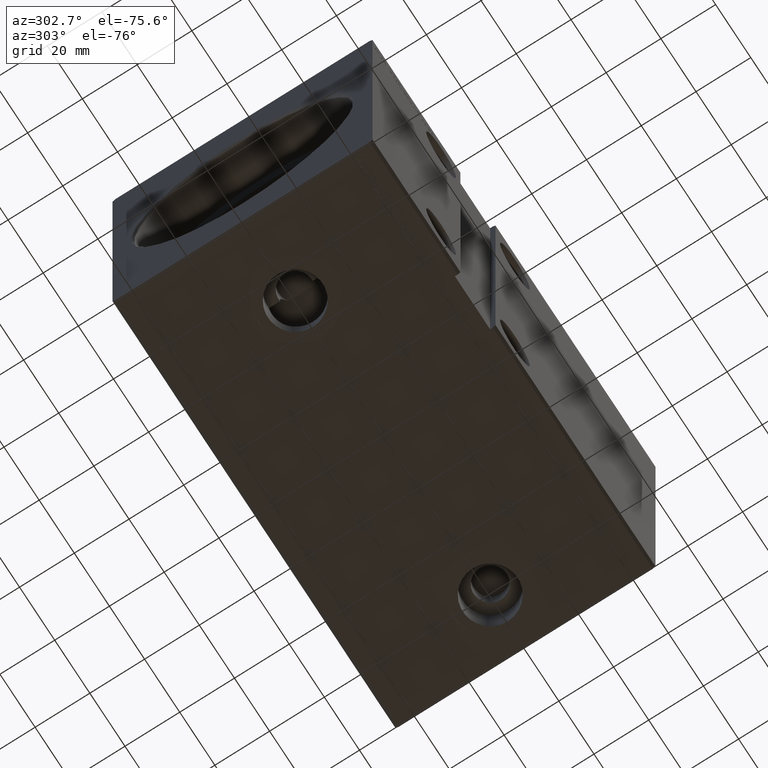
[diagram: clean part render]
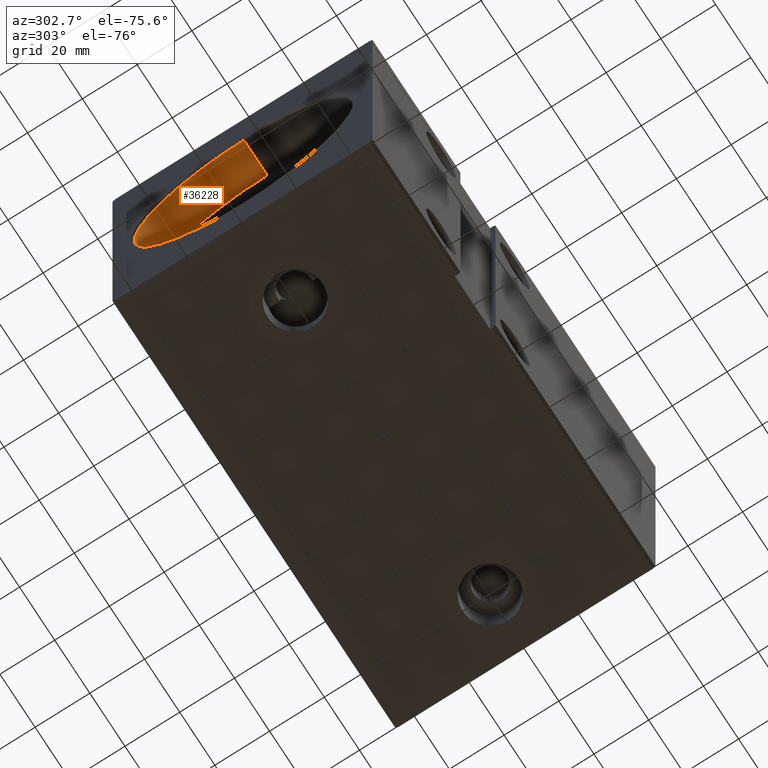
[diagram: same view with one face highlighted and labeled with its STEP entity id]
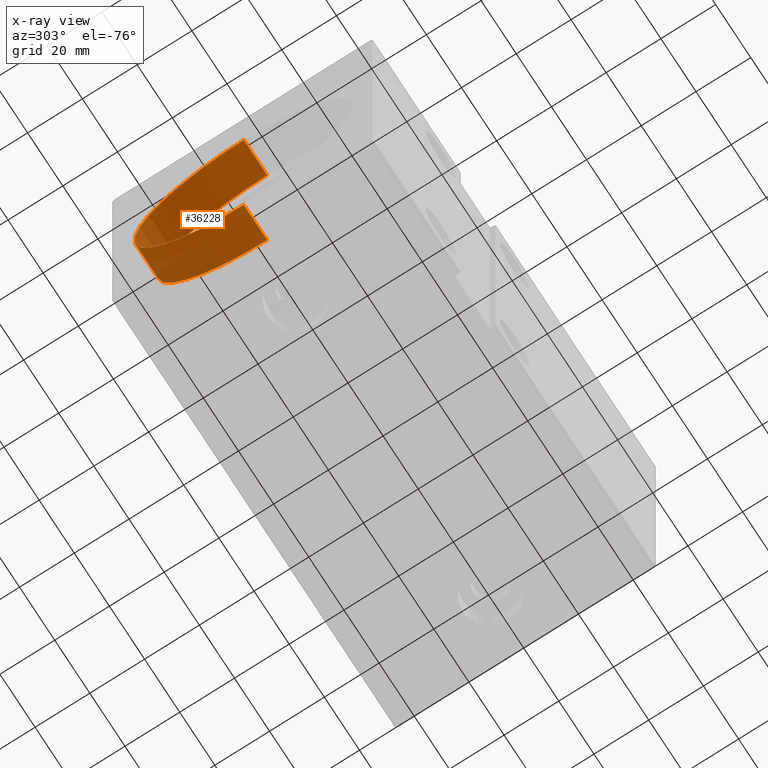
[diagram: x-ray of the same camera — body ghosted, the highlighted face saturated]
A machine part, auxiliary view. The second image highlights one B-rep face of the part: STEP entity #36228.
The next image is the same camera in x-ray: the body ghosted, the highlighted face saturated — about 18% of this face is hidden behind the body in this view.
In plain terms, the highlighted cylindrical surface (partial cylindrical patch) has radius 40 mm, axis along (-1, -0, -0).
Its self-contained STEP definition (entity closure, byte-faithful):
#736 = CARTESIAN_POINT ( 'NONE',  ( 14.00000000000000000, 0.000000000000000000, 40.00000000000000000 ) ) ;
#883 = EDGE_CURVE ( 'NONE', #34728, #3375, #41854, .T. ) ;
#2786 = CARTESIAN_POINT ( 'NONE',  ( 14.00000000000000000, 0.000000000000000000, 0.000000000000000000 ) ) ;
#3375 = VERTEX_POINT ( 'NONE', #12001 ) ;
#3794 = ORIENTED_EDGE ( 'NONE', *, *, #36756, .F. ) ;
#4360 = LINE ( 'NONE', #736, #38173 ) ;
#5820 = VERTEX_POINT ( 'NONE', #23502 ) ;
#8802 = CARTESIAN_POINT ( 'NONE',  ( 14.00000000000000000, 0.000000000000000000, 0.000000000000000000 ) ) ;
#12001 = CARTESIAN_POINT ( 'NONE',  ( 0.7000000000000408118, 4.898587196589413026E-15, -40.00000000000000000 ) ) ;
#13876 = DIRECTION ( 'NONE',  ( 0.000000000000000000, 0.000000000000000000, -1.000000000000000000 ) ) ;
#15797 = DIRECTION ( 'NONE',  ( 0.000000000000000000, 0.000000000000000000, 1.000000000000000000 ) ) ;
#17825 = CARTESIAN_POINT ( 'NONE',  ( 0.7000000000000408118, 0.000000000000000000, 40.00000000000000000 ) ) ;
#17869 = EDGE_CURVE ( 'NONE', #5820, #3375, #34517, .T. ) ;
#18996 = FACE_OUTER_BOUND ( 'NONE', #27762, .T. ) ;
#19902 = CIRCLE ( 'NONE', #20603, 40.00000000000000000 ) ;
#20160 = DIRECTION ( 'NONE',  ( -1.000000000000000000, -0.000000000000000000, -0.000000000000000000 ) ) ;
#20603 = AXIS2_PLACEMENT_3D ( 'NONE', #8802, #38481, #22065 ) ;
#21307 = DIRECTION ( 'NONE',  ( -1.000000000000000000, -0.000000000000000000, -0.000000000000000000 ) ) ;
#22065 = DIRECTION ( 'NONE',  ( 0.000000000000000000, 0.000000000000000000, 1.000000000000000000 ) ) ;
#22416 = CYLINDRICAL_SURFACE ( 'NONE', #38964, 40.00000000000000000 ) ;
#22588 = ORIENTED_EDGE ( 'NONE', *, *, #883, .T. ) ;
#23502 = CARTESIAN_POINT ( 'NONE',  ( 14.00000000000000000, 4.898587196589413026E-15, -40.00000000000000000 ) ) ;
#24144 = AXIS2_PLACEMENT_3D ( 'NONE', #26274, #36294, #13876 ) ;
#26274 = CARTESIAN_POINT ( 'NONE',  ( 0.7000000000000408118, 0.000000000000000000, 0.000000000000000000 ) ) ;
#27762 = EDGE_LOOP ( 'NONE', ( #40141, #3794, #33278, #22588 ) ) ;
#28196 = DIRECTION ( 'NONE',  ( -1.000000000000000000, -0.000000000000000000, -0.000000000000000000 ) ) ;
#30993 = EDGE_CURVE ( 'NONE', #39756, #34728, #4360, .T. ) ;
#33278 = ORIENTED_EDGE ( 'NONE', *, *, #30993, .T. ) ;
#34517 = LINE ( 'NONE', #37298, #38195 ) ;
#34728 = VERTEX_POINT ( 'NONE', #17825 ) ;
#36228 = ADVANCED_FACE ( 'NONE', ( #18996 ), #22416, .F. ) ;
#36294 = DIRECTION ( 'NONE',  ( -1.000000000000000000, 0.000000000000000000, 0.000000000000000000 ) ) ;
#36756 = EDGE_CURVE ( 'NONE', #39756, #5820, #19902, .T. ) ;
#36860 = CARTESIAN_POINT ( 'NONE',  ( 14.00000000000000000, 0.000000000000000000, 40.00000000000000000 ) ) ;
#37298 = CARTESIAN_POINT ( 'NONE',  ( 14.00000000000000000, 4.898587196589413026E-15, -40.00000000000000000 ) ) ;
#38173 = VECTOR ( 'NONE', #20160, 1000.000000000000000 ) ;
#38195 = VECTOR ( 'NONE', #21307, 1000.000000000000000 ) ;
#38481 = DIRECTION ( 'NONE',  ( -1.000000000000000000, 0.000000000000000000, 0.000000000000000000 ) ) ;
#38964 = AXIS2_PLACEMENT_3D ( 'NONE', #2786, #28196, #15797 ) ;
#39756 = VERTEX_POINT ( 'NONE', #36860 ) ;
#40141 = ORIENTED_EDGE ( 'NONE', *, *, #17869, .F. ) ;
#41854 = CIRCLE ( 'NONE', #24144, 40.00000000000000000 ) ;